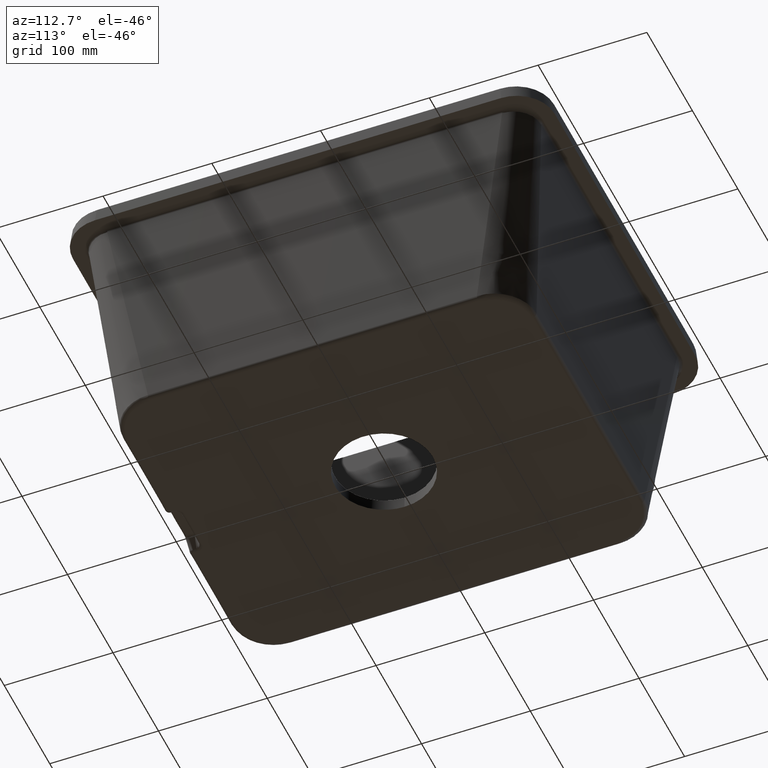
[diagram: clean part render]
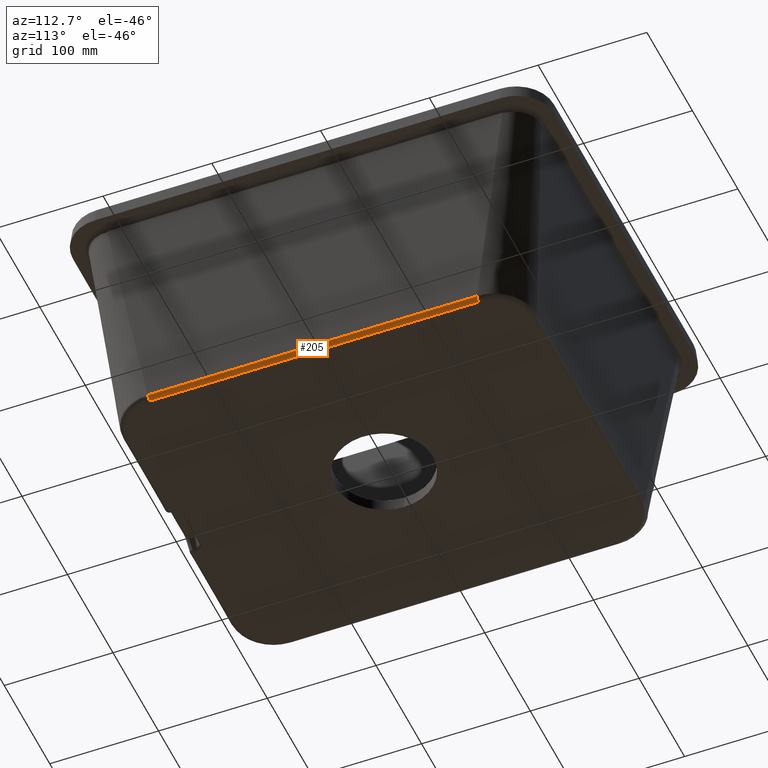
[diagram: same view with one face highlighted and labeled with its STEP entity id]
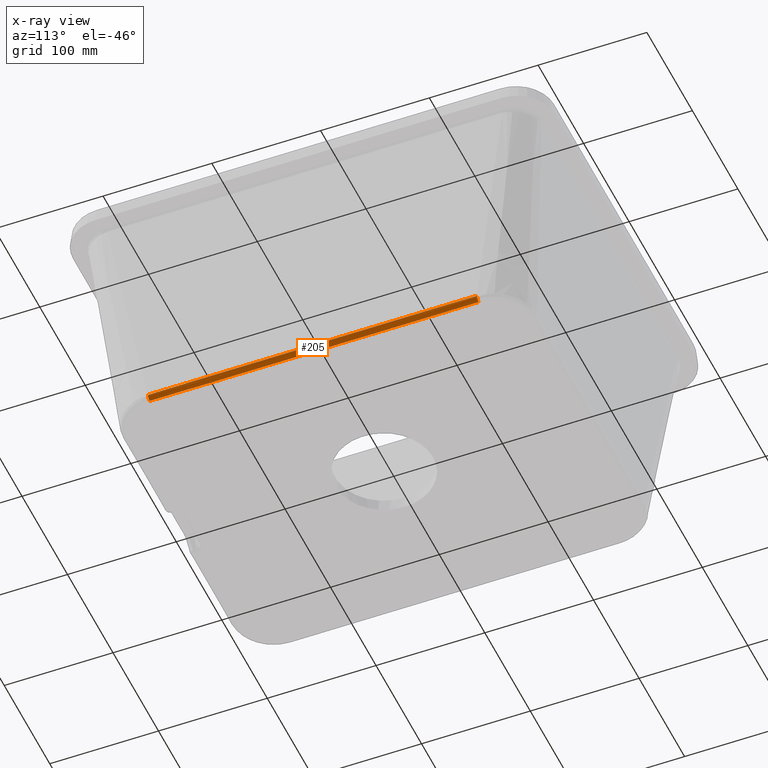
[diagram: x-ray of the same camera — body ghosted, the highlighted face saturated]
A machine part, auxiliary view. The second image highlights one B-rep face of the part: STEP entity #205.
The next image is the same camera in x-ray: the body ghosted, the highlighted face saturated — about 0% of this face is hidden behind the body in this view.
In plain terms, the highlighted face is a freeform B-spline surface patch.
Its self-contained STEP definition (entity closure, byte-faithful):
#144=(
BOUNDED_CURVE()
B_SPLINE_CURVE(3,(#2049,#2050,#2051,#2052),.UNSPECIFIED.,.F.,.F.)
B_SPLINE_CURVE_WITH_KNOTS((4,4),(0.,1.),.UNSPECIFIED.)
CURVE()
GEOMETRIC_REPRESENTATION_ITEM()
RATIONAL_B_SPLINE_CURVE((0.999999999514746,0.999999999514746,0.999999999514746,
0.999999999514746))
REPRESENTATION_ITEM('')
);
#205=ADVANCED_FACE('',(#331),#280,.T.);
#280=(
BOUNDED_SURFACE()
B_SPLINE_SURFACE(3,2,((#3056,#3057,#3058),(#3059,#3060,#3061),(#3062,#3063,
#3064),(#3065,#3066,#3067)),.UNSPECIFIED.,.F.,.F.,.F.)
B_SPLINE_SURFACE_WITH_KNOTS((4,4),(3,3),(0.,1.),(0.,1.),.UNSPECIFIED.)
GEOMETRIC_REPRESENTATION_ITEM()
RATIONAL_B_SPLINE_SURFACE(((1.,0.737270778092326,1.),(1.,0.737270778092326,
1.),(1.,0.737270979529744,1.),(1.,0.737270979529744,1.)))
REPRESENTATION_ITEM('')
SURFACE()
);
#331=FACE_OUTER_BOUND('',#419,.T.);
#419=EDGE_LOOP('',(#652,#653,#654,#655));
#492=CIRCLE('',#1370,4.);
#493=CIRCLE('',#1371,4.);
#652=ORIENTED_EDGE('',*,*,#1122,.F.);
#653=ORIENTED_EDGE('',*,*,#1065,.T.);
#654=ORIENTED_EDGE('',*,*,#1123,.F.);
#655=ORIENTED_EDGE('',*,*,#1124,.F.);
#934=VERTEX_POINT('',#2048);
#935=VERTEX_POINT('',#2053);
#974=VERTEX_POINT('',#3049);
#975=VERTEX_POINT('',#3051);
#1065=EDGE_CURVE('',#935,#934,#144,.T.);
#1122=EDGE_CURVE('',#935,#974,#492,.T.);
#1123=EDGE_CURVE('',#975,#934,#493,.T.);
#1124=EDGE_CURVE('',#974,#975,#1283,.T.);
#1283=B_SPLINE_CURVE_WITH_KNOTS('',3,(#3052,#3053,#3054,#3055),
 .UNSPECIFIED.,.F.,.F.,(4,4),(0.,1.),.UNSPECIFIED.);
#1370=AXIS2_PLACEMENT_3D('',#3048,#1476,#1477);
#1371=AXIS2_PLACEMENT_3D('',#3050,#1478,#1479);
#1476=DIRECTION('',(-1.36611791184115E-6,-0.999999999877156,-1.5614799184083E-5));
#1477=DIRECTION('',(0.,-1.5614799189767E-5,0.999999999878091));
#1478=DIRECTION('',(-1.38499077932596E-6,0.999999999873738,-1.58305170465374E-5));
#1479=DIRECTION('',(0.,1.58305170465389E-5,0.999999999874698));
#2048=CARTESIAN_POINT('',(153.465531381306,-57.7146886904291,-214.000693595883));
#2049=CARTESIAN_POINT('',(153.465544949388,-360.28533185425,-214.000565821745));
#2050=CARTESIAN_POINT('',(153.465680124011,-259.428457760856,-213.998990961863));
#2051=CARTESIAN_POINT('',(153.465668075767,-158.571567766416,-213.999096979281));
#2052=CARTESIAN_POINT('',(153.465531385299,-57.7146886258263,-214.000693595884));
#2053=CARTESIAN_POINT('',(153.465544888738,-360.286729429795,-214.000565843567));
#3048=CARTESIAN_POINT('',(153.465620223689,-360.285394313549,-210.000565822941));
#3049=CARTESIAN_POINT('',(157.450399016056,-360.285394313549,-210.349188793932));
#3050=CARTESIAN_POINT('',(153.465609044895,-57.7146253036506,-210.000693597139));
#3051=CARTESIAN_POINT('',(157.450387837262,-57.7146253036506,-210.34931656813));
#3052=CARTESIAN_POINT('',(157.450399016056,-360.285394313549,-210.349188793932));
#3053=CARTESIAN_POINT('',(157.450534043004,-261.445502230286,-210.347645428848));
#3054=CARTESIAN_POINT('',(157.45053031674,-160.588579226986,-210.347688020247));
#3055=CARTESIAN_POINT('',(157.450387837262,-57.7146253036505,-210.34931656813));
#3056=CARTESIAN_POINT('',(157.450387837262,-57.7146253036506,-210.34931656813));
#3057=CARTESIAN_POINT('',(157.130927514686,-57.7146835504131,-214.000764763834));
#3058=CARTESIAN_POINT('',(153.465531380308,-57.7146886258263,-214.000693595884));
#3059=CARTESIAN_POINT('',(157.450527523775,-158.571548288888,-210.347719943987));
#3060=CARTESIAN_POINT('',(157.131066948509,-158.571566205283,-213.999170866113));
#3061=CARTESIAN_POINT('',(153.465668070776,-158.571567766416,-213.999096979281));
#3062=CARTESIAN_POINT('',(157.450536798679,-259.428471316184,-210.347613931354));
#3063=CARTESIAN_POINT('',(157.131076444371,-259.428458847305,-213.99906232114));
#3064=CARTESIAN_POINT('',(153.46568011902,-259.428457760856,-213.998990961863));
#3065=CARTESIAN_POINT('',(157.450399016056,-360.28539431355,-210.349188793932));
#3066=CARTESIAN_POINT('',(157.130938884708,-360.285336860533,-214.000634803889));
#3067=CARTESIAN_POINT('',(153.465544944397,-360.28533185425,-214.000565821745));